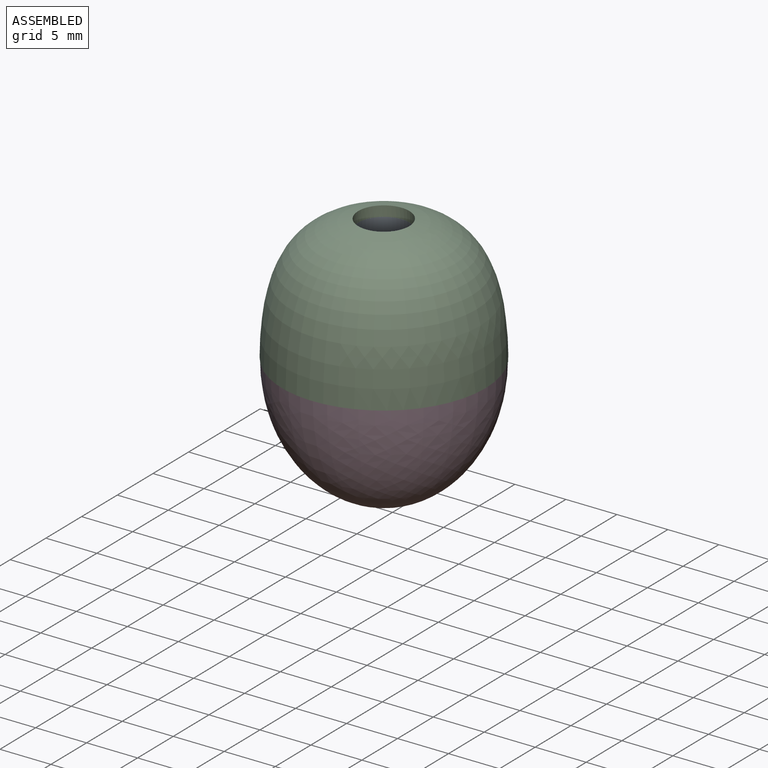
[diagram: assembled view]
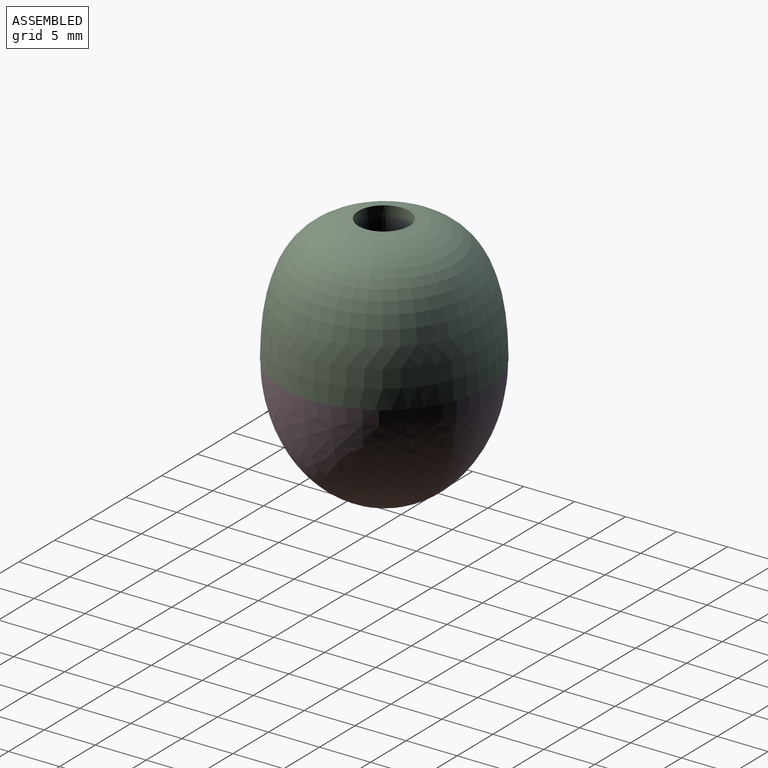
[diagram: assembled view, second angle]
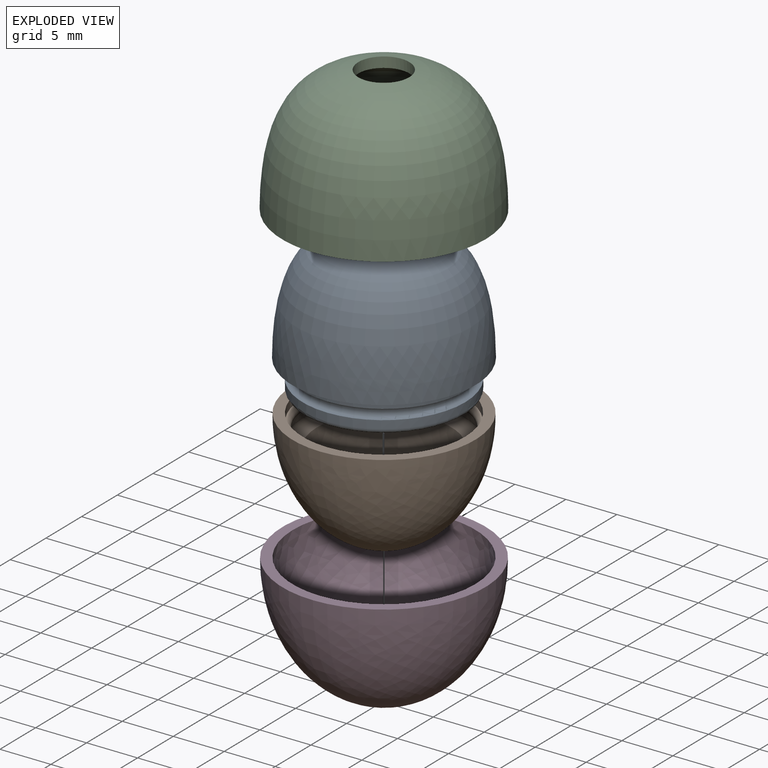
[diagram: exploded view]
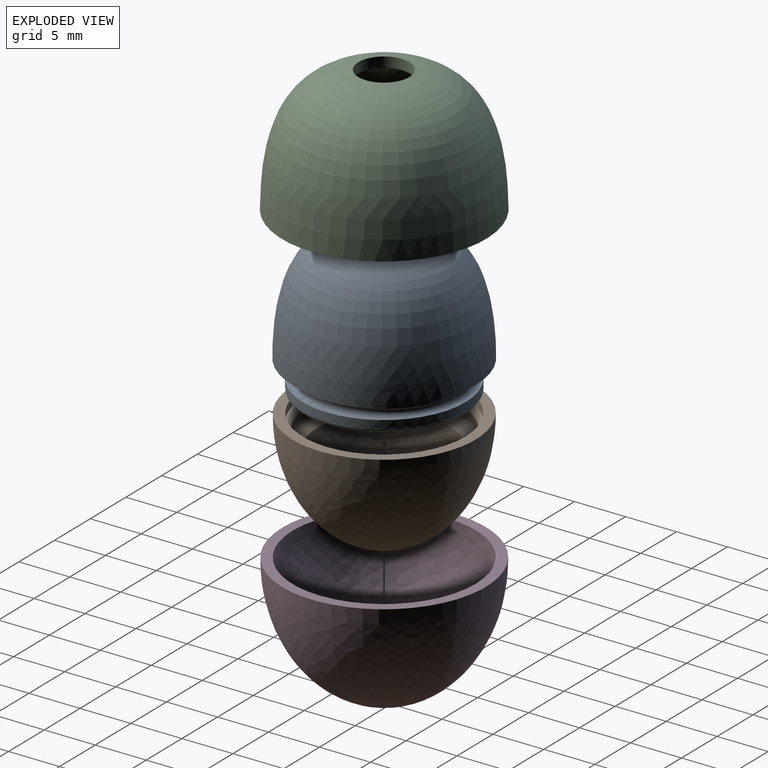
[diagram: exploded view, second angle]
ASSEMBLY  parts=4 mates=3
PART A: 13 faces, bbox 18x18x14.4 mm
  f0: cylinder r=7.98mm len=15.96mm, axis (0,0,1), area 38.8mm2, adj f2,f7
  f1: plane 6x6mm, normal (0,0,-1), area 28.3mm2, adj f6
  f2: torus R=7.48mm, axis (0,0,1), area 38.5mm2, adj f0,f3
  f3: plane 14.96x14.96mm, normal (0,0,-1), area 37.5mm2, adj f2,f4
  f4: revolved ~14x14mm, area 134.2mm2, adj f3,f5
  f5: revolved ~14x14mm, area 402.2mm2, adj f4,f6
  f6: cylinder r=3mm len=6mm, axis (0,0,1), area 32mm2, adj f1,f5
  f7: torus R=7.98mm, axis (0,0,-1), area 75.6mm2, adj f0,f10
  f8: revolved ~18x18mm, area 1296.3mm2, adj f9,f11
  f9: plane 18x18mm, normal (0,0,-1), area 54.4mm2, adj f8,f10
  f10: cylinder r=7.98mm len=15.96mm, axis (0,0,1), area 40.1mm2, adj f7,f9
  f11: cylinder r=2.5mm len=5mm, axis (0,0,1), area 47mm2, adj f8,f12
  f12: plane 5x5mm, normal (0,0,1), area 19.6mm2, adj f11
PART B: 8 faces, bbox 18x18x11.5 mm
  f0: torus R=7.98mm, axis (0,0,1), area 74mm2, adj f1
  f1: cone r=7.97mm half-angle=0.2deg, axis (0,0,-1), area 40.6mm2, adj f0,f2
  f2: cone r=8.97mm half-angle=89.7deg, axis (0,0,1), area 53.2mm2, adj f1,f3
  f3: revolved ~17.93x17.93mm, area 606.5mm2, adj f2
  f4: cone r=7.97mm half-angle=0.2deg, axis (0,0,-1), area 39.2mm2, adj f5
  f5: torus R=7.47mm, axis (0,0,1), area 38.4mm2, adj f4,f6
  f6: cone r=7.47mm half-angle=89.8deg, axis (0,0,1), area 38.1mm2, adj f5
  f7: revolved ~13.22x6.61mm, area 0mm2
PART C: 4 faces, bbox 20x20x12.4 mm
  f0: revolved ~20x20mm, area 785.4mm2, adj f1,f3
  f1: plane 20x20mm, normal (0,0,-1), area 59.7mm2, adj f0,f2
  f2: revolved ~18x18mm, area 648.1mm2, adj f1,f3
  f3: cylinder r=2.5mm len=5.01mm, axis (0,0,1), area 16mm2, adj f0,f2
PART D: 3 faces, bbox 19.9x19.9x12.6 mm
  f0: revolved ~17.93x17.93mm, area 606.5mm2, adj f1
  f1: cone r=8.97mm half-angle=89.7deg, axis (0,0,1), area 59.5mm2, adj f0,f2
  f2: revolved ~19.93x19.93mm, area 737.3mm2, adj f1
PLACE A rot(axis=(1,0,0),0.2deg) t=(-14.58,-10.35,-17.61)mm
PLACE B t=(-14.58,-10.32,-17.6)mm
PLACE C rot(axis=(1,0,0),0.2deg) t=(-14.58,-10.35,-17.61)mm
PLACE D t=(-14.58,-10.32,-17.6)mm
MATE fastened B.f1 <-> D.f1  axis (0,0,1) through (-14.58,-10.33,-25.86)mm
MATE fastened A.f0 <-> C.f3  axis (0,0,1) through (-14.58,-10.38,-6.16)mm
MATE revolute A.f0 <-> B.f2  axis (0,0,1) through (-14.58,-10.35,-18.01)mm
